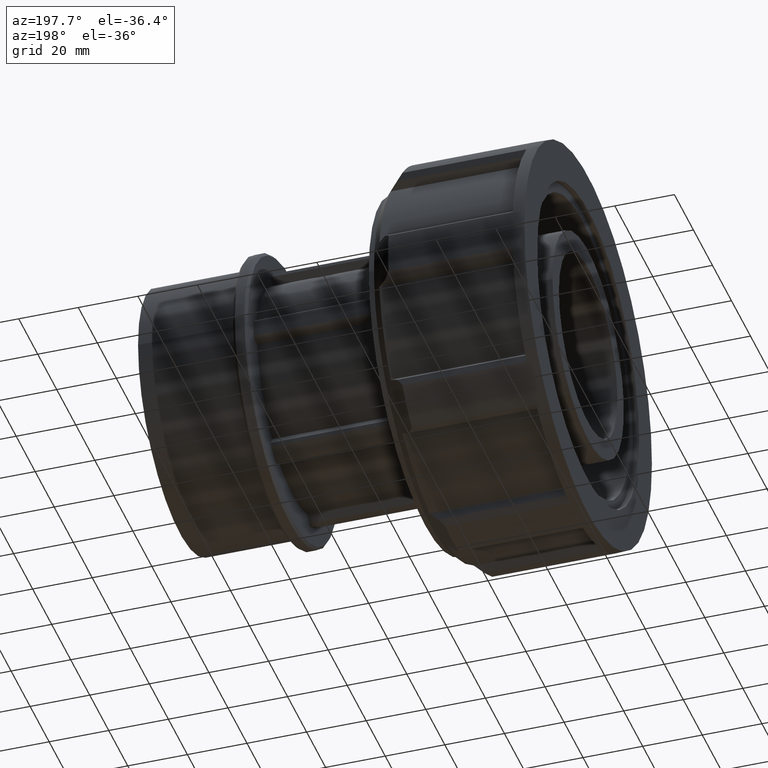
[diagram: clean part render]
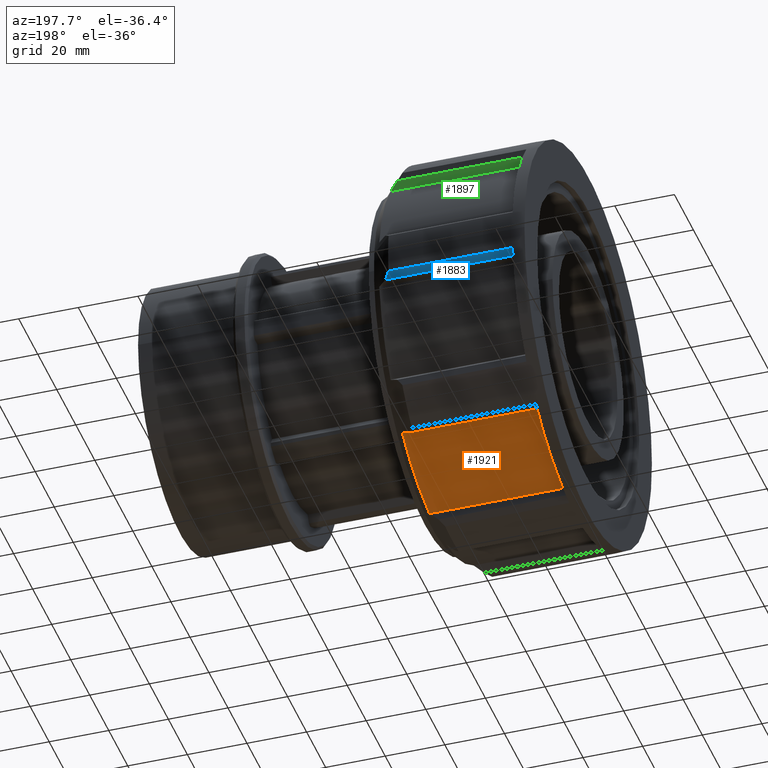
[diagram: same view with three faces highlighted in distinct colors, each labeled with its STEP entity id]
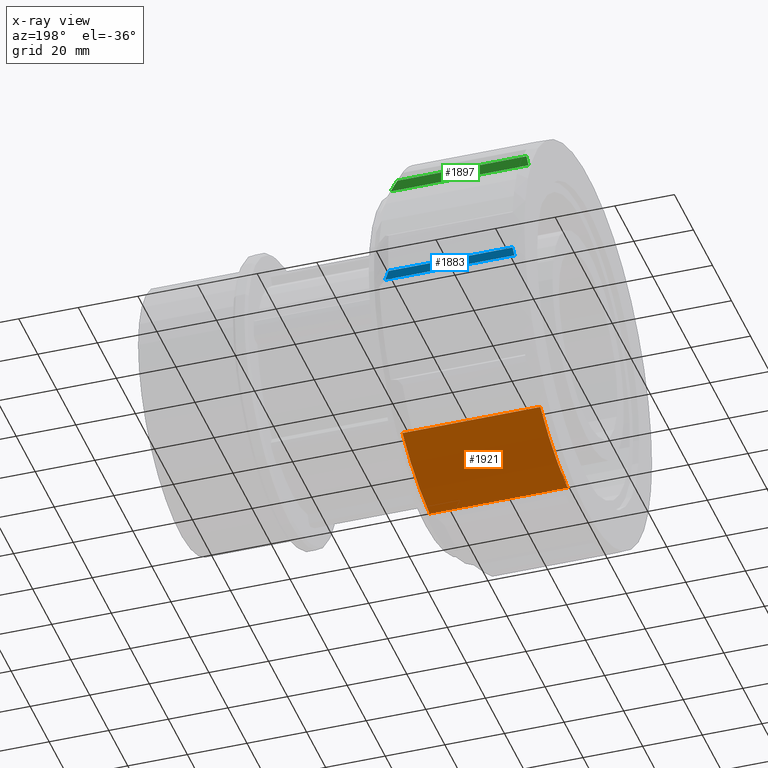
[diagram: x-ray of the same camera — body ghosted, the three highlighted faces saturated]
A machine part, auxiliary view with three faces highlighted in distinct colors.
The next image is the same camera in x-ray (body ghosted, the three faces saturated) — at least one of them is partly hidden behind the body in this view.
Their STEP definitions:

[orange] entity #1921 — the highlighted cylindrical surface (partial cylindrical patch) has radius 62.31 mm, axis along (1, 0, 0).
#117=CIRCLE('',#2033,62.31);
#135=CIRCLE('',#2084,62.31);
#171=CYLINDRICAL_SURFACE('',#2095,62.31);
#267=FACE_OUTER_BOUND('',#383,.T.);
#383=EDGE_LOOP('',(#1699,#1700,#1701,#1702));
#563=LINE('',#3194,#727);
#566=LINE('',#3199,#730);
#727=VECTOR('',#2517,46.29428);
#730=VECTOR('',#2522,46.29428);
#866=VERTEX_POINT('',#3026);
#867=VERTEX_POINT('',#3030);
#915=VERTEX_POINT('',#3193);
#916=VERTEX_POINT('',#3197);
#1093=EDGE_CURVE('',#866,#867,#117,.T.);
#1169=EDGE_CURVE('',#915,#867,#563,.T.);
#1172=EDGE_CURVE('',#866,#916,#566,.T.);
#1191=EDGE_CURVE('',#916,#915,#135,.T.);
#1699=ORIENTED_EDGE('',*,*,#1169,.T.);
#1700=ORIENTED_EDGE('',*,*,#1093,.F.);
#1701=ORIENTED_EDGE('',*,*,#1172,.T.);
#1702=ORIENTED_EDGE('',*,*,#1191,.T.);
#1921=ADVANCED_FACE('',(#267),#171,.T.);
#2033=AXIS2_PLACEMENT_3D('',#3031,#2394,#2395);
#2084=AXIS2_PLACEMENT_3D('',#3237,#2567,#2568);
#2095=AXIS2_PLACEMENT_3D('',#3253,#2592,#2593);
#2394=DIRECTION('center_axis',(1.,0.,0.));
#2395=DIRECTION('ref_axis',(0.,1.,0.));
#2517=DIRECTION('',(1.,0.,0.));
#2522=DIRECTION('',(-1.,0.,0.));
#2567=DIRECTION('center_axis',(1.,0.,0.));
#2568=DIRECTION('ref_axis',(0.,0.,-1.));
#2592=DIRECTION('center_axis',(1.,0.,0.));
#2593=DIRECTION('ref_axis',(0.,1.,0.));
#3026=CARTESIAN_POINT('',(50.40428,8.7884,-61.6871147440047));
#3030=CARTESIAN_POINT('',(50.40428,37.4050399115385,-49.8337143830982));
#3031=CARTESIAN_POINT('Origin',(50.40428,0.,0.));
#3193=CARTESIAN_POINT('',(4.11,37.4050399115385,-49.8337143830982));
#3194=CARTESIAN_POINT('',(28.4275,37.4050399115385,-49.8337143830982));
#3197=CARTESIAN_POINT('',(4.11,8.7884,-61.6871147440047));
#3199=CARTESIAN_POINT('',(28.4275,8.7884,-61.6871147440047));
#3237=CARTESIAN_POINT('Origin',(4.11,0.,0.));
#3253=CARTESIAN_POINT('Origin',(28.4275,0.,0.));

[blue] entity #1883 — the highlighted planar face has unit normal (0, 0.664, -0.7477).
#43=(
BOUNDED_CURVE()
B_SPLINE_CURVE(2,(#3057,#3058,#3059),.UNSPECIFIED.,.F.,.F.)
B_SPLINE_CURVE_WITH_KNOTS((3,3),(0.,0.296317603696118),.UNSPECIFIED.)
CURVE()
GEOMETRIC_REPRESENTATION_ITEM()
RATIONAL_B_SPLINE_CURVE((1.,1.00088709125475,1.00137929450644))
REPRESENTATION_ITEM('')
);
#229=FACE_OUTER_BOUND('',#345,.T.);
#345=EDGE_LOOP('',(#1531,#1532,#1533,#1534));
#511=LINE('',#3082,#675);
#527=LINE('',#3122,#691);
#528=LINE('',#3123,#692);
#675=VECTOR('',#2411,41.60428);
#691=VECTOR('',#2445,43.3463661413246);
#692=VECTOR('',#2446,2.62848709656412);
#874=VERTEX_POINT('',#3052);
#875=VERTEX_POINT('',#3056);
#882=VERTEX_POINT('',#3081);
#897=VERTEX_POINT('',#3121);
#1101=EDGE_CURVE('',#875,#874,#43,.T.);
#1110=EDGE_CURVE('',#882,#875,#511,.T.);
#1133=EDGE_CURVE('',#874,#897,#527,.T.);
#1134=EDGE_CURVE('',#897,#882,#528,.F.);
#1531=ORIENTED_EDGE('',*,*,#1101,.T.);
#1532=ORIENTED_EDGE('',*,*,#1133,.T.);
#1533=ORIENTED_EDGE('',*,*,#1134,.T.);
#1534=ORIENTED_EDGE('',*,*,#1110,.T.);
#1792=PLANE('',#2049);
#1883=ADVANCED_FACE('',(#229),#1792,.T.);
#2049=AXIS2_PLACEMENT_3D('',#3120,#2443,#2444);
#2411=DIRECTION('',(1.,0.,0.));
#2443=DIRECTION('center_axis',(0.,0.664019885904943,-0.747714913000126));
#2444=DIRECTION('ref_axis',(-1.,0.,0.));
#2445=DIRECTION('',(-1.,0.,0.));
#2446=DIRECTION('',(0.,-0.747714913000126,-0.664019885904943));
#3052=CARTESIAN_POINT('',(47.4563661413246,64.663431293323,-8.7884));
#3056=CARTESIAN_POINT('',(45.71428,66.6287902940524,-7.04303229803688));
#3057=CARTESIAN_POINT('Ctrl Pts',(45.71428,66.6287902940524,-7.04303229803691));
#3058=CARTESIAN_POINT('Ctrl Pts',(46.6114422805275,65.6331670515024,-7.92721104106841));
#3059=CARTESIAN_POINT('Ctrl Pts',(47.4563661413246,64.663431293323,-8.7884));
#3081=CARTESIAN_POINT('',(4.11,66.6287902940524,-7.04303229803688));
#3082=CARTESIAN_POINT('',(2.05500000000001,66.6287902940524,-7.04303229803688));
#3120=CARTESIAN_POINT('Origin',(2.05500000000001,65.6461107936877,-7.91571614901844));
#3121=CARTESIAN_POINT('',(4.11,64.663431293323,-8.7884));
#3122=CARTESIAN_POINT('',(2.05500000000001,64.663431293323,-8.7884));
#3123=CARTESIAN_POINT('',(4.11,66.6786053217872,-6.9987932860047));

[green] entity #1897 — the highlighted planar face has unit normal (0, 0.7071, -0.7071).
#46=(
BOUNDED_CURVE()
B_SPLINE_CURVE(2,(#3072,#3073,#3074),.UNSPECIFIED.,.F.,.F.)
B_SPLINE_CURVE_WITH_KNOTS((3,3),(0.441248220959914,0.976411500271437),
 .UNSPECIFIED.)
CURVE()
GEOMETRIC_REPRESENTATION_ITEM()
RATIONAL_B_SPLINE_CURVE((1.00538611331412,1.00842916952506,1.01093084006953))
REPRESENTATION_ITEM('')
);
#243=FACE_OUTER_BOUND('',#359,.T.);
#359=EDGE_LOOP('',(#1587,#1588,#1589,#1590));
#507=LINE('',#2913,#671);
#555=LINE('',#3178,#719);
#556=LINE('',#3179,#720);
#671=VECTOR('',#2365,43.3463661413246);
#719=VECTOR('',#2501,46.29428);
#720=VECTOR('',#2502,2.9763165493183);
#830=VERTEX_POINT('',#2908);
#831=VERTEX_POINT('',#2912);
#879=VERTEX_POINT('',#3070);
#911=VERTEX_POINT('',#3177);
#1056=EDGE_CURVE('',#830,#831,#507,.T.);
#1106=EDGE_CURVE('',#879,#830,#46,.T.);
#1161=EDGE_CURVE('',#911,#879,#555,.T.);
#1162=EDGE_CURVE('',#831,#911,#556,.T.);
#1587=ORIENTED_EDGE('',*,*,#1056,.F.);
#1588=ORIENTED_EDGE('',*,*,#1106,.F.);
#1589=ORIENTED_EDGE('',*,*,#1161,.F.);
#1590=ORIENTED_EDGE('',*,*,#1162,.F.);
#1806=PLANE('',#2063);
#1897=ADVANCED_FACE('',(#243),#1806,.T.);
#2063=AXIS2_PLACEMENT_3D('',#3176,#2499,#2500);
#2365=DIRECTION('',(-1.,0.,0.));
#2499=DIRECTION('center_axis',(0.,0.707106781186547,-0.707106781186548));
#2500=DIRECTION('ref_axis',(0.,-0.707106781186548,-0.707106781186548));
#2501=DIRECTION('',(1.,0.,0.));
#2502=DIRECTION('',(0.,-0.707106781186548,-0.707106781186547));
#2908=CARTESIAN_POINT('',(47.4563661413246,51.938287998079,39.5096135265192));
#2912=CARTESIAN_POINT('',(4.11,51.938287998079,39.5096135265192));
#2913=CARTESIAN_POINT('',(2.05500000000001,51.938287998079,39.5096135265192));
#3070=CARTESIAN_POINT('',(50.40428,49.8337143830982,37.4050399115385));
#3072=CARTESIAN_POINT('Ctrl Pts',(50.40428,49.8337143830982,37.4050399115385));
#3073=CARTESIAN_POINT('Ctrl Pts',(48.9650436360981,50.861684332461,38.4330098609013));
#3074=CARTESIAN_POINT('Ctrl Pts',(47.4563661413246,51.938287998079,39.5096135265192));
#3176=CARTESIAN_POINT('Origin',(52.745,53.1811554452349,40.7524809736752));
#3177=CARTESIAN_POINT('',(4.11,49.8337143830982,37.4050399115385));
#3178=CARTESIAN_POINT('',(28.4275,49.8337143830982,37.4050399115385));
#3179=CARTESIAN_POINT('',(4.11,45.2752463405074,32.8465718689477));